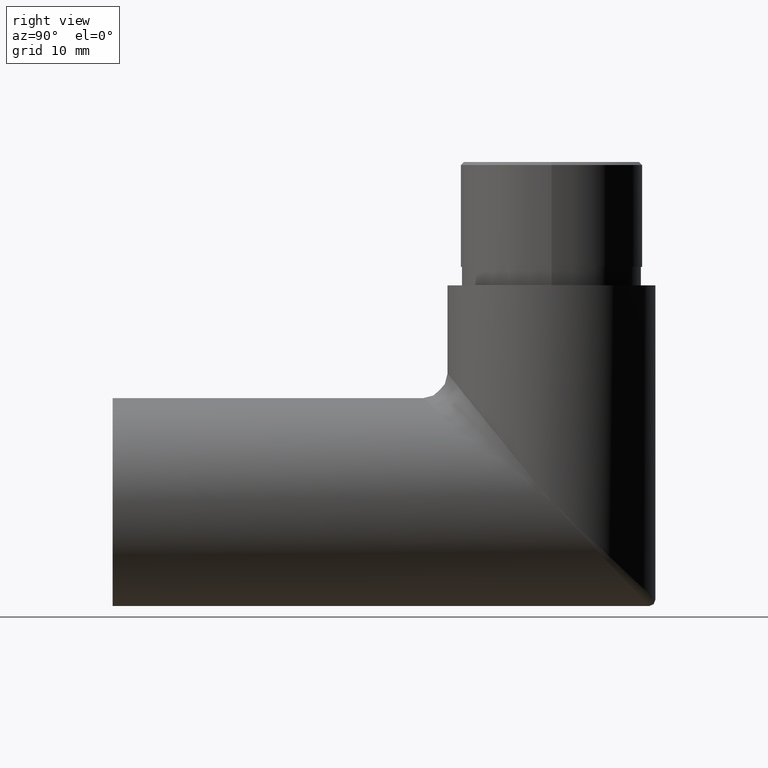
[diagram: clean part render]
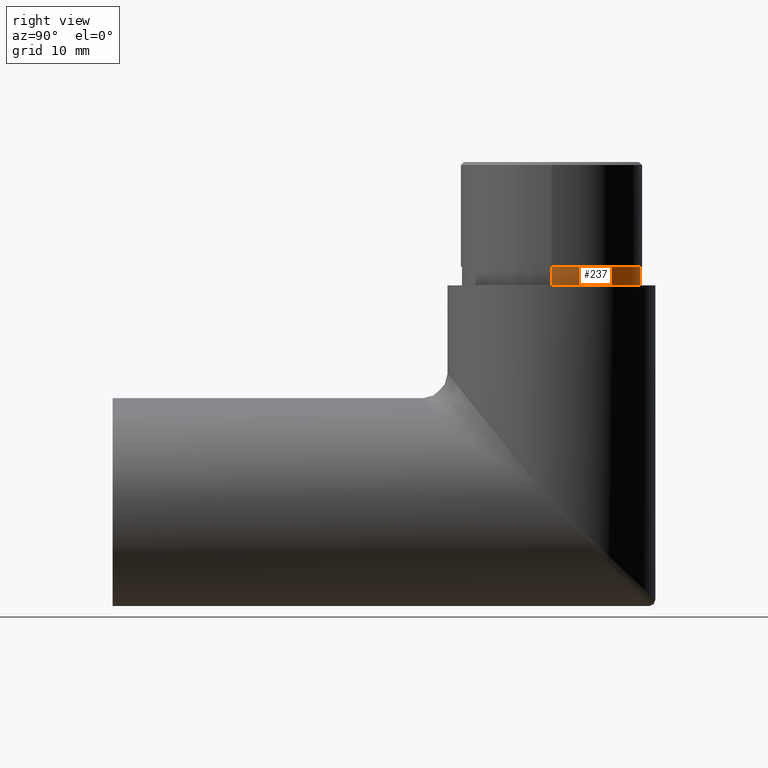
[diagram: same view with one face highlighted and labeled with its STEP entity id]
A machine part, right view. The second image highlights one B-rep face of the part: STEP entity #237.
In plain terms, the highlighted cylindrical surface (partial cylindrical patch) has radius 14.6 mm, axis along (-0, -0, -1).
Its self-contained STEP definition (entity closure, byte-faithful):
#121 = CARTESIAN_POINT ( 'NONE',  ( -14.59999999999999964, 71.15000000000000568, 38.15000000000002700 ) ) ;
#215 = CARTESIAN_POINT ( 'NONE',  ( 0.000000000000000000, 71.15000000000000568, 38.15000000000002700 ) ) ;
#237 = ADVANCED_FACE ( 'NONE', ( #10932 ), #14500, .T. ) ;
#383 = ORIENTED_EDGE ( 'NONE', *, *, #7452, .T. ) ;
#764 = DIRECTION ( 'NONE',  ( 1.000000000000000000, 0.000000000000000000, 0.000000000000000000 ) ) ;
#1111 = VERTEX_POINT ( 'NONE', #121 ) ;
#1642 = DIRECTION ( 'NONE',  ( -1.000000000000000000, 0.000000000000000000, 0.000000000000000000 ) ) ;
#2077 = VECTOR ( 'NONE', #2165, 1000.000000000000000 ) ;
#2091 = DIRECTION ( 'NONE',  ( -0.000000000000000000, -0.000000000000000000, -1.000000000000000000 ) ) ;
#2165 = DIRECTION ( 'NONE',  ( -0.000000000000000000, -0.000000000000000000, -1.000000000000000000 ) ) ;
#2417 = CIRCLE ( 'NONE', #14322, 14.59999999999999964 ) ;
#2759 = CIRCLE ( 'NONE', #9375, 14.59999999999999964 ) ;
#3306 = ORIENTED_EDGE ( 'NONE', *, *, #11383, .F. ) ;
#3928 = ORIENTED_EDGE ( 'NONE', *, *, #13393, .F. ) ;
#4129 = VERTEX_POINT ( 'NONE', #6672 ) ;
#5086 = LINE ( 'NONE', #8157, #2077 ) ;
#5575 = AXIS2_PLACEMENT_3D ( 'NONE', #6254, #14902, #1642 ) ;
#5771 = EDGE_CURVE ( 'NONE', #13353, #4129, #5086, .T. ) ;
#6254 = CARTESIAN_POINT ( 'NONE',  ( 0.000000000000000000, 71.15000000000000568, 38.15000000000002700 ) ) ;
#6616 = ORIENTED_EDGE ( 'NONE', *, *, #5771, .T. ) ;
#6672 = CARTESIAN_POINT ( 'NONE',  ( 14.59999999999999964, 71.15000000000000568, 35.15000000000001990 ) ) ;
#6705 = VECTOR ( 'NONE', #2091, 1000.000000000000000 ) ;
#7452 = EDGE_CURVE ( 'NONE', #4129, #7924, #2417, .T. ) ;
#7565 = DIRECTION ( 'NONE',  ( 0.000000000000000000, 0.000000000000000000, 1.000000000000000000 ) ) ;
#7651 = LINE ( 'NONE', #13976, #6705 ) ;
#7924 = VERTEX_POINT ( 'NONE', #9915 ) ;
#8157 = CARTESIAN_POINT ( 'NONE',  ( 14.59999999999999964, 71.15000000000000568, 38.15000000000002700 ) ) ;
#9196 = CARTESIAN_POINT ( 'NONE',  ( 14.59999999999999964, 71.15000000000000568, 38.15000000000002700 ) ) ;
#9375 = AXIS2_PLACEMENT_3D ( 'NONE', #215, #7565, #14789 ) ;
#9915 = CARTESIAN_POINT ( 'NONE',  ( -14.59999999999999964, 71.15000000000000568, 35.15000000000001990 ) ) ;
#10932 = FACE_OUTER_BOUND ( 'NONE', #11916, .T. ) ;
#11383 = EDGE_CURVE ( 'NONE', #13353, #1111, #2759, .T. ) ;
#11612 = DIRECTION ( 'NONE',  ( 0.000000000000000000, 0.000000000000000000, 1.000000000000000000 ) ) ;
#11916 = EDGE_LOOP ( 'NONE', ( #3306, #6616, #383, #3928 ) ) ;
#13353 = VERTEX_POINT ( 'NONE', #9196 ) ;
#13393 = EDGE_CURVE ( 'NONE', #1111, #7924, #7651, .T. ) ;
#13976 = CARTESIAN_POINT ( 'NONE',  ( -14.59999999999999964, 71.15000000000000568, 38.15000000000002700 ) ) ;
#14322 = AXIS2_PLACEMENT_3D ( 'NONE', #15394, #11612, #764 ) ;
#14500 = CYLINDRICAL_SURFACE ( 'NONE', #5575, 14.59999999999999964 ) ;
#14789 = DIRECTION ( 'NONE',  ( 1.000000000000000000, 0.000000000000000000, 0.000000000000000000 ) ) ;
#14902 = DIRECTION ( 'NONE',  ( -0.000000000000000000, -0.000000000000000000, -1.000000000000000000 ) ) ;
#15394 = CARTESIAN_POINT ( 'NONE',  ( 0.000000000000000000, 71.15000000000000568, 35.15000000000001990 ) ) ;